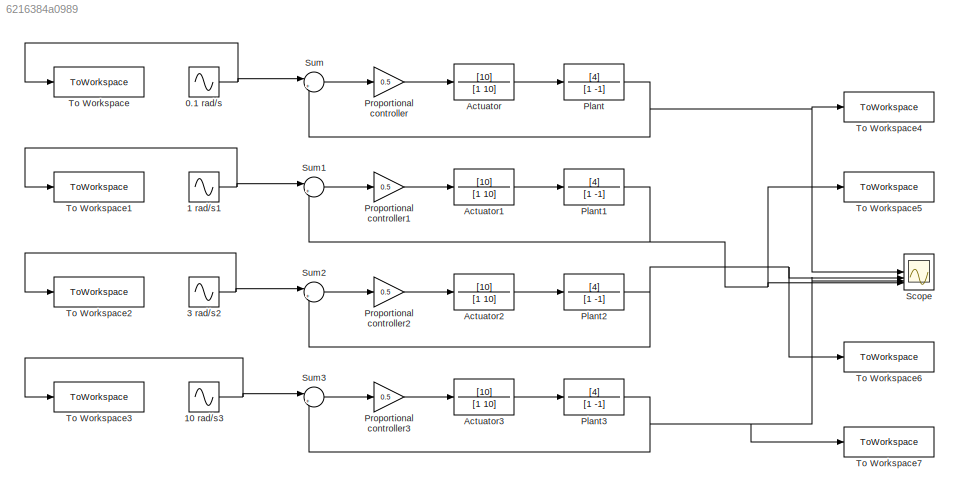
MODEL slx_6216384a0989
KIND model
CONFIG AbsTol = auto
CONFIG EnableMultiTasking = off
CONFIG FixedStep = auto
CONFIG MaxStep = auto
CONFIG MinStep = auto
CONFIG RelTol = 1e-3
CONFIG SampleTimeConstraint = Unconstrained
CONFIG SolverName = VariableStepAuto
CONFIG StartTime = 0.0
CONFIG StopTime = 10.0
BLOCK [Sin] 0.1 rad//s
  Frequency = 0.1
  SampleTime = 0
BLOCK [Sin] 1 rad//s1
  SampleTime = 0
BLOCK [Sin] 10 rad//s3
  Frequency = 10
  SampleTime = 0
BLOCK [Sin] 3 rad//s2
  Frequency = 3
  SampleTime = 0
BLOCK [TransferFcn] Actuator
  Denominator = [1 10]
  Numerator = [10]
BLOCK [TransferFcn] Actuator1
  Denominator = [1 10]
  Numerator = [10]
BLOCK [TransferFcn] Actuator2
  Denominator = [1 10]
  Numerator = [10]
BLOCK [TransferFcn] Actuator3
  Denominator = [1 10]
  Numerator = [10]
BLOCK [TransferFcn] Plant
  Denominator = [1 -1]
  Numerator = [4]
BLOCK [TransferFcn] Plant1
  Denominator = [1 -1]
  Numerator = [4]
BLOCK [TransferFcn] Plant2
  Denominator = [1 -1]
  Numerator = [4]
BLOCK [TransferFcn] Plant3
  Denominator = [1 -1]
  Numerator = [4]
BLOCK [Gain] Proportional controller
  Gain = 0.5
BLOCK [Gain] Proportional controller1
  Gain = 0.5
BLOCK [Gain] Proportional controller2
  Gain = 0.5
BLOCK [Gain] Proportional controller3
  Gain = 0.5
BLOCK [Scope] Scope
  Floating = off
  NumInputPorts = 4
  ScopeSpecificationString = Simulink.scopes.TimeScopeBlockCfg('CurrentConfiguration', extmgr.ConfigurationSet(extmgr.Configuration('Core','General UI',true),extmgr.Configuration('Core','Source UI',true),extmgr.Configuration('Sources','WiredSimulink',true),extmgr.Configuration('Visuals','Time Domain',true,'SerializedDisplays',{struct('MinYLimReal','-0.1968','MaxYLimReal','1.7712','YLabelReal','','MinYLimMag','0.00000','MaxYLi...<+3327ch>
BLOCK [Sum] Sum
  Inputs = |+-
BLOCK [Sum] Sum1
  Inputs = |+-
BLOCK [Sum] Sum2
  Inputs = |+-
BLOCK [Sum] Sum3
  Inputs = |+-
BLOCK [ToWorkspace] To Workspace
  FixptAsFi = on
  MaxDataPoints = inf
  SampleTime = -1
  SaveFormat = Timeseries
  VariableName = yd1
BLOCK [ToWorkspace] To Workspace1
  FixptAsFi = on
  MaxDataPoints = inf
  SampleTime = -1
  SaveFormat = Timeseries
  VariableName = yd2
BLOCK [ToWorkspace] To Workspace2
  FixptAsFi = on
  MaxDataPoints = inf
  SampleTime = -1
  SaveFormat = Timeseries
  VariableName = yd3
BLOCK [ToWorkspace] To Workspace3
  FixptAsFi = on
  MaxDataPoints = inf
  SampleTime = -1
  SaveFormat = Timeseries
  VariableName = yd4
BLOCK [ToWorkspace] To Workspace4
  FixptAsFi = on
  MaxDataPoints = inf
  SampleTime = -1
  SaveFormat = Timeseries
  VariableName = y1
BLOCK [ToWorkspace] To Workspace5
  FixptAsFi = on
  MaxDataPoints = inf
  SampleTime = -1
  SaveFormat = Timeseries
  VariableName = y2
BLOCK [ToWorkspace] To Workspace6
  FixptAsFi = on
  MaxDataPoints = inf
  SampleTime = -1
  SaveFormat = Timeseries
  VariableName = y3
BLOCK [ToWorkspace] To Workspace7
  FixptAsFi = on
  MaxDataPoints = inf
  SampleTime = -1
  SaveFormat = Timeseries
  VariableName = y4
NET 0.1 rad//s:1 -> Sum:1, To Workspace:1
NET 1 rad//s1:1 -> Sum1:1, To Workspace1:1
NET 10 rad//s3:1 -> Sum3:1, To Workspace3:1
NET 3 rad//s2:1 -> Sum2:1, To Workspace2:1
LINE Actuator1:1 -> Plant1:1
LINE Actuator2:1 -> Plant2:1
LINE Actuator3:1 -> Plant3:1
LINE Actuator:1 -> Plant:1
NET Plant1:1 -> Scope:4, Sum1:2, To Workspace5:1
NET Plant2:1 -> Scope:2, Sum2:2, To Workspace6:1
NET Plant3:1 -> Scope:3, Sum3:2, To Workspace7:1
NET Plant:1 -> Scope:1, Sum:2, To Workspace4:1
LINE Proportional controller1:1 -> Actuator1:1
LINE Proportional controller2:1 -> Actuator2:1
LINE Proportional controller3:1 -> Actuator3:1
LINE Proportional controller:1 -> Actuator:1
LINE Sum1:1 -> Proportional controller1:1
LINE Sum2:1 -> Proportional controller2:1
LINE Sum3:1 -> Proportional controller3:1
LINE Sum:1 -> Proportional controller:1
note: NET lines group one-source signal fan-out (src -> all destinations, sorted); 1:1 wires keep LINE
